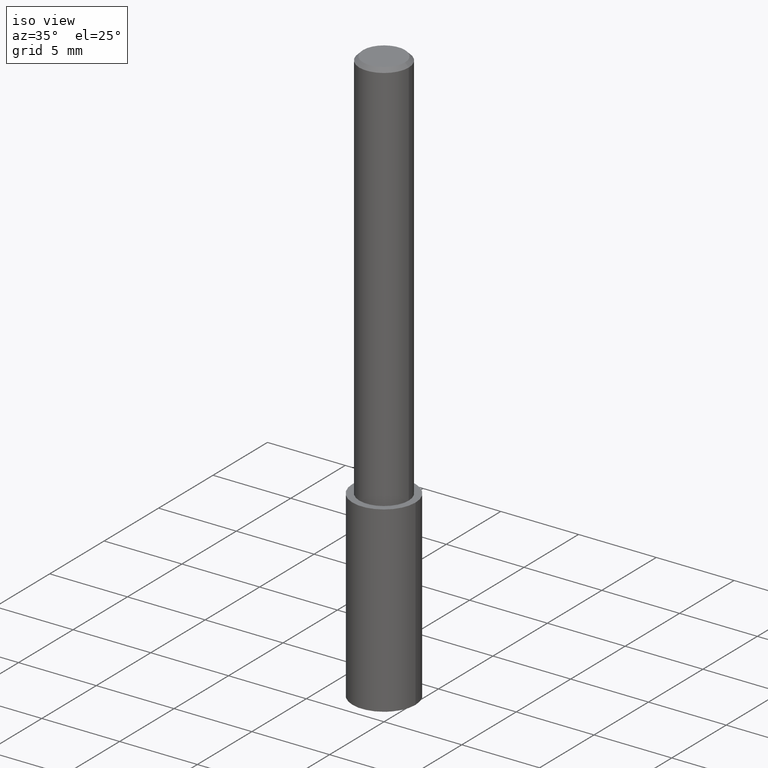
[diagram: clean part render]
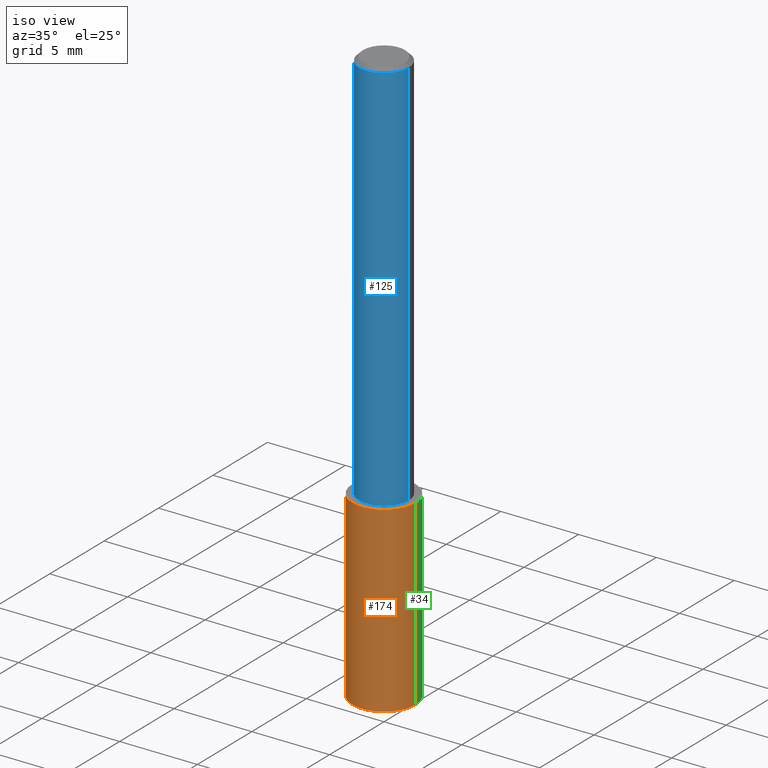
[diagram: same view with three faces highlighted in distinct colors, each labeled with its STEP entity id]
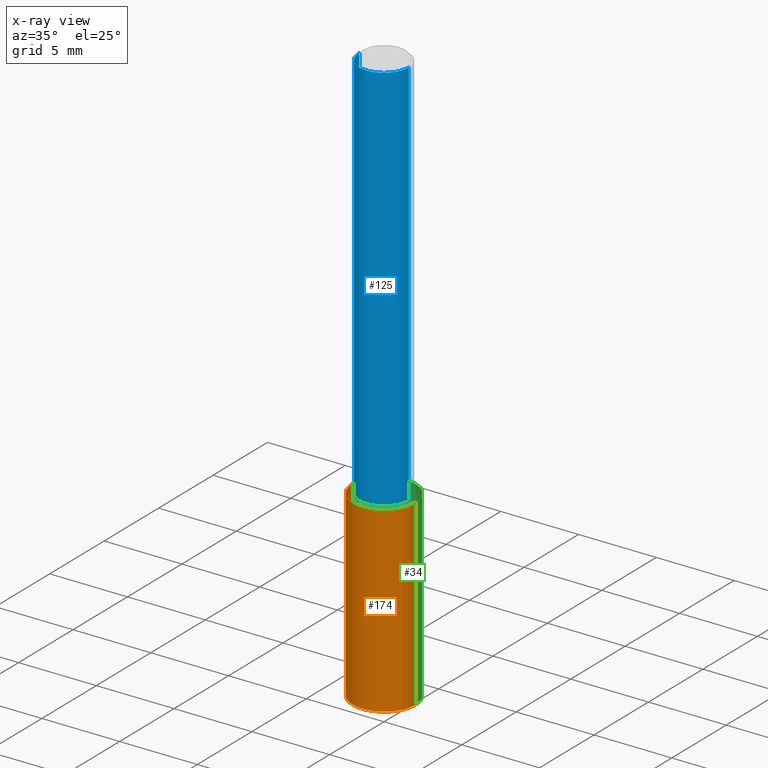
[diagram: x-ray of the same camera — body ghosted, the three highlighted faces saturated]
A machine part, iso view with three faces highlighted in distinct colors.
The next image is the same camera in x-ray (body ghosted, the three faces saturated) — at least one of them is partly hidden behind the body in this view.
Their STEP definitions:

[orange] entity #174 — the highlighted cylindrical surface (partial cylindrical patch) has radius 2.0244 mm, axis along (-0, 0, 1).
#6 = VERTEX_POINT ( 'NONE', #81 ) ;
#9 = VERTEX_POINT ( 'NONE', #179 ) ;
#15 = DIRECTION ( 'NONE',  ( -2.445468806185136597E-29, 3.491481338843145583E-15, 1.000000000000000000 ) ) ;
#42 = LINE ( 'NONE', #110, #122 ) ;
#45 = FACE_OUTER_BOUND ( 'NONE', #223, .T. ) ;
#47 = DIRECTION ( 'NONE',  ( -2.445468806185136877E-29, 3.491481338843145188E-15, 1.000000000000000000 ) ) ;
#58 = VECTOR ( 'NONE', #47, 39.37007874015748143 ) ;
#61 = AXIS2_PLACEMENT_3D ( 'NONE', #249, #15, #277 ) ;
#65 = AXIS2_PLACEMENT_3D ( 'NONE', #173, #199, #306 ) ;
#68 = CYLINDRICAL_SURFACE ( 'NONE', #61, 0.07969999999999999307 ) ;
#81 = CARTESIAN_POINT ( 'NONE',  ( -0.07969999999999996532, -4.541159520281276939E-15, -1.462835279645047226 ) ) ;
#85 = VERTEX_POINT ( 'NONE', #127 ) ;
#93 = CIRCLE ( 'NONE', #235, 0.07969999999999999307 ) ;
#109 = ORIENTED_EDGE ( 'NONE', *, *, #137, .T. ) ;
#110 = CARTESIAN_POINT ( 'NONE',  ( -0.07969999999999999307, -2.925178778442346967E-15, -1.000000000000000222 ) ) ;
#118 = ORIENTED_EDGE ( 'NONE', *, *, #134, .T. ) ;
#122 = VECTOR ( 'NONE', #316, 39.37007874015748143 ) ;
#127 = CARTESIAN_POINT ( 'NONE',  ( 0.07969999999999999307, -4.048023464254741036E-15, -1.000000000000000222 ) ) ;
#134 = EDGE_CURVE ( 'NONE', #165, #85, #288, .T. ) ;
#137 = EDGE_CURVE ( 'NONE', #6, #165, #93, .T. ) ;
#138 = ORIENTED_EDGE ( 'NONE', *, *, #178, .F. ) ;
#140 = CARTESIAN_POINT ( 'NONE',  ( 0.07969999999999996532, -5.664004206093671797E-15, -1.462835279645047226 ) ) ;
#165 = VERTEX_POINT ( 'NONE', #140 ) ;
#167 = DIRECTION ( 'NONE',  ( 1.000000000000000000, -6.982962677686270655E-15, 0.000000000000000000 ) ) ;
#173 = CARTESIAN_POINT ( 'NONE',  ( 2.445468806185136877E-29, -3.491481338843145977E-15, -1.000000000000000222 ) ) ;
#174 = ADVANCED_FACE ( 'NONE', ( #45 ), #68, .T. ) ;
#178 = EDGE_CURVE ( 'NONE', #6, #9, #42, .T. ) ;
#179 = CARTESIAN_POINT ( 'NONE',  ( -0.07969999999999999307, -3.733169149361811559E-15, -1.000000000000000222 ) ) ;
#185 = CIRCLE ( 'NONE', #65, 0.07969999999999999307 ) ;
#188 = ORIENTED_EDGE ( 'NONE', *, *, #339, .F. ) ;
#196 = DIRECTION ( 'NONE',  ( -2.445468806185136597E-29, 3.491481338843145583E-15, 1.000000000000000000 ) ) ;
#199 = DIRECTION ( 'NONE',  ( -2.445468806185136597E-29, 3.491481338843145583E-15, 1.000000000000000000 ) ) ;
#223 = EDGE_LOOP ( 'NONE', ( #138, #109, #118, #188 ) ) ;
#234 = CARTESIAN_POINT ( 'NONE',  ( 3.577318044959073984E-29, -5.107462080682076738E-15, -1.462835279645047226 ) ) ;
#235 = AXIS2_PLACEMENT_3D ( 'NONE', #234, #196, #167 ) ;
#249 = CARTESIAN_POINT ( 'NONE',  ( 2.445468806185137438E-29, -3.491481338843146371E-15, -1.000000000000000222 ) ) ;
#277 = DIRECTION ( 'NONE',  ( 1.000000000000000000, -6.982962677686265133E-15, 0.000000000000000000 ) ) ;
#281 = CARTESIAN_POINT ( 'NONE',  ( 0.07969999999999999307, -4.048023464254741825E-15, -1.000000000000000222 ) ) ;
#288 = LINE ( 'NONE', #281, #58 ) ;
#306 = DIRECTION ( 'NONE',  ( 1.000000000000000000, -6.982962677686265133E-15, 0.000000000000000000 ) ) ;
#316 = DIRECTION ( 'NONE',  ( -2.445468806185136877E-29, 3.491481338843145188E-15, 1.000000000000000000 ) ) ;
#339 = EDGE_CURVE ( 'NONE', #9, #85, #185, .T. ) ;

[blue] entity #125 — the highlighted cylindrical surface (edge-blend (fillet) strip) has radius 1.5875 mm, axis along (-0, 0, 1).
#12 = CARTESIAN_POINT ( 'NONE',  ( 2.292627005798581499E-31, -3.273263755165471417E-17, -0.009375000000000063838 ) ) ;
#16 = FACE_OUTER_BOUND ( 'NONE', #20, .T. ) ;
#20 = EDGE_LOOP ( 'NONE', ( #133, #102, #181, #62 ) ) ;
#40 = VERTEX_POINT ( 'NONE', #216 ) ;
#55 = VERTEX_POINT ( 'NONE', #324 ) ;
#57 = EDGE_CURVE ( 'NONE', #40, #55, #219, .T. ) ;
#62 = ORIENTED_EDGE ( 'NONE', *, *, #94, .F. ) ;
#86 = CARTESIAN_POINT ( 'NONE',  ( 0.000000000000000000, 0.000000000000000000, 0.000000000000000000 ) ) ;
#94 = EDGE_CURVE ( 'NONE', #251, #55, #220, .T. ) ;
#102 = ORIENTED_EDGE ( 'NONE', *, *, #130, .T. ) ;
#105 = VECTOR ( 'NONE', #203, 39.37007874015748143 ) ;
#106 = CYLINDRICAL_SURFACE ( 'NONE', #317, 0.06250000000000006939 ) ;
#112 = AXIS2_PLACEMENT_3D ( 'NONE', #150, #230, #176 ) ;
#113 = VECTOR ( 'NONE', #315, 39.37007874015748143 ) ;
#125 = ADVANCED_FACE ( 'NONE', ( #16 ), #106, .T. ) ;
#130 = EDGE_CURVE ( 'NONE', #283, #40, #313, .T. ) ;
#133 = ORIENTED_EDGE ( 'NONE', *, *, #215, .F. ) ;
#146 = CARTESIAN_POINT ( 'NONE',  ( -0.06250000000000012490, -1.318017778347335489E-15, -1.000000000000000222 ) ) ;
#150 = CARTESIAN_POINT ( 'NONE',  ( 2.445468806185137438E-29, -3.491481338843146371E-15, -1.000000000000000222 ) ) ;
#176 = DIRECTION ( 'NONE',  ( 1.000000000000000000, -6.982962677686264344E-15, 0.000000000000000000 ) ) ;
#181 = ORIENTED_EDGE ( 'NONE', *, *, #57, .T. ) ;
#187 = DIRECTION ( 'NONE',  ( -2.445468806185136597E-29, 3.491481338843145583E-15, 1.000000000000000000 ) ) ;
#203 = DIRECTION ( 'NONE',  ( -2.445468806185136877E-29, 3.491481338843145188E-15, 1.000000000000000000 ) ) ;
#215 = EDGE_CURVE ( 'NONE', #283, #251, #323, .T. ) ;
#216 = CARTESIAN_POINT ( 'NONE',  ( 0.06250000000000012490, -3.927916506198539224E-15, -1.000000000000000222 ) ) ;
#219 = LINE ( 'NONE', #335, #105 ) ;
#220 = CIRCLE ( 'NONE', #269, 0.06250000000000000000 ) ;
#230 = DIRECTION ( 'NONE',  ( -2.445468806185136597E-29, 3.491481338843145583E-15, 1.000000000000000000 ) ) ;
#251 = VERTEX_POINT ( 'NONE', #309 ) ;
#269 = AXIS2_PLACEMENT_3D ( 'NONE', #12, #187, #294 ) ;
#283 = VERTEX_POINT ( 'NONE', #146 ) ;
#284 = DIRECTION ( 'NONE',  ( -2.445468806185136597E-29, 3.491481338843145583E-15, 1.000000000000000000 ) ) ;
#294 = DIRECTION ( 'NONE',  ( 1.000000000000000000, -6.982962677686266711E-15, 0.000000000000000000 ) ) ;
#309 = CARTESIAN_POINT ( 'NONE',  ( -0.06250000000000000000, -1.318017778347336672E-15, -0.009375000000000063838 ) ) ;
#313 = CIRCLE ( 'NONE', #112, 0.06250000000000012490 ) ;
#315 = DIRECTION ( 'NONE',  ( -2.445468806185136877E-29, 3.491481338843145188E-15, 1.000000000000000000 ) ) ;
#317 = AXIS2_PLACEMENT_3D ( 'NONE', #86, #284, #336 ) ;
#322 = CARTESIAN_POINT ( 'NONE',  ( -0.06250000000000006939, 4.440892098500631092E-16, -3.074334431409319267E-30 ) ) ;
#323 = LINE ( 'NONE', #322, #113 ) ;
#324 = CARTESIAN_POINT ( 'NONE',  ( 0.06250000000000000000, -4.691678049070464390E-16, -0.009375000000000063838 ) ) ;
#335 = CARTESIAN_POINT ( 'NONE',  ( 0.06250000000000006939, -4.364351673553921624E-16, 3.047610484872463374E-30 ) ) ;
#336 = DIRECTION ( 'NONE',  ( 1.000000000000000000, -6.982962677686266711E-15, 4.876176775795935793E-29 ) ) ;

[green] entity #34 — the highlighted cylindrical surface (partial cylindrical patch) has radius 2.0244 mm, axis along (-0, 0, 1).
#1 = CARTESIAN_POINT ( 'NONE',  ( 3.577318044959073984E-29, -5.107462080682076738E-15, -1.462835279645047226 ) ) ;
#4 = CIRCLE ( 'NONE', #227, 0.07969999999999999307 ) ;
#6 = VERTEX_POINT ( 'NONE', #81 ) ;
#9 = VERTEX_POINT ( 'NONE', #179 ) ;
#34 = ADVANCED_FACE ( 'NONE', ( #222 ), #310, .T. ) ;
#42 = LINE ( 'NONE', #110, #122 ) ;
#44 = ORIENTED_EDGE ( 'NONE', *, *, #301, .F. ) ;
#47 = DIRECTION ( 'NONE',  ( -2.445468806185136877E-29, 3.491481338843145188E-15, 1.000000000000000000 ) ) ;
#51 = DIRECTION ( 'NONE',  ( 1.000000000000000000, -6.982962677686270655E-15, 0.000000000000000000 ) ) ;
#58 = VECTOR ( 'NONE', #47, 39.37007874015748143 ) ;
#72 = DIRECTION ( 'NONE',  ( -2.445468806185136597E-29, 3.491481338843145583E-15, 1.000000000000000000 ) ) ;
#77 = EDGE_LOOP ( 'NONE', ( #164, #225, #44, #170 ) ) ;
#81 = CARTESIAN_POINT ( 'NONE',  ( -0.07969999999999996532, -4.541159520281276939E-15, -1.462835279645047226 ) ) ;
#85 = VERTEX_POINT ( 'NONE', #127 ) ;
#90 = DIRECTION ( 'NONE',  ( -2.445468806185136597E-29, 3.491481338843145583E-15, 1.000000000000000000 ) ) ;
#110 = CARTESIAN_POINT ( 'NONE',  ( -0.07969999999999999307, -2.925178778442346967E-15, -1.000000000000000222 ) ) ;
#111 = DIRECTION ( 'NONE',  ( 1.000000000000000000, -6.982962677686265133E-15, 0.000000000000000000 ) ) ;
#122 = VECTOR ( 'NONE', #316, 39.37007874015748143 ) ;
#127 = CARTESIAN_POINT ( 'NONE',  ( 0.07969999999999999307, -4.048023464254741036E-15, -1.000000000000000222 ) ) ;
#134 = EDGE_CURVE ( 'NONE', #165, #85, #288, .T. ) ;
#136 = DIRECTION ( 'NONE',  ( 1.000000000000000000, -6.982962677686265133E-15, 0.000000000000000000 ) ) ;
#140 = CARTESIAN_POINT ( 'NONE',  ( 0.07969999999999996532, -5.664004206093671797E-15, -1.462835279645047226 ) ) ;
#164 = ORIENTED_EDGE ( 'NONE', *, *, #183, .T. ) ;
#165 = VERTEX_POINT ( 'NONE', #140 ) ;
#166 = AXIS2_PLACEMENT_3D ( 'NONE', #169, #285, #136 ) ;
#169 = CARTESIAN_POINT ( 'NONE',  ( 2.445468806185137438E-29, -3.491481338843146371E-15, -1.000000000000000222 ) ) ;
#170 = ORIENTED_EDGE ( 'NONE', *, *, #134, .F. ) ;
#178 = EDGE_CURVE ( 'NONE', #6, #9, #42, .T. ) ;
#179 = CARTESIAN_POINT ( 'NONE',  ( -0.07969999999999999307, -3.733169149361811559E-15, -1.000000000000000222 ) ) ;
#183 = EDGE_CURVE ( 'NONE', #165, #6, #258, .T. ) ;
#194 = AXIS2_PLACEMENT_3D ( 'NONE', #1, #72, #51 ) ;
#201 = CARTESIAN_POINT ( 'NONE',  ( 2.445468806185136877E-29, -3.491481338843145977E-15, -1.000000000000000222 ) ) ;
#222 = FACE_OUTER_BOUND ( 'NONE', #77, .T. ) ;
#225 = ORIENTED_EDGE ( 'NONE', *, *, #178, .T. ) ;
#227 = AXIS2_PLACEMENT_3D ( 'NONE', #201, #90, #111 ) ;
#258 = CIRCLE ( 'NONE', #194, 0.07969999999999999307 ) ;
#281 = CARTESIAN_POINT ( 'NONE',  ( 0.07969999999999999307, -4.048023464254741825E-15, -1.000000000000000222 ) ) ;
#285 = DIRECTION ( 'NONE',  ( -2.445468806185136597E-29, 3.491481338843145583E-15, 1.000000000000000000 ) ) ;
#288 = LINE ( 'NONE', #281, #58 ) ;
#301 = EDGE_CURVE ( 'NONE', #85, #9, #4, .T. ) ;
#310 = CYLINDRICAL_SURFACE ( 'NONE', #166, 0.07969999999999999307 ) ;
#316 = DIRECTION ( 'NONE',  ( -2.445468806185136877E-29, 3.491481338843145188E-15, 1.000000000000000000 ) ) ;